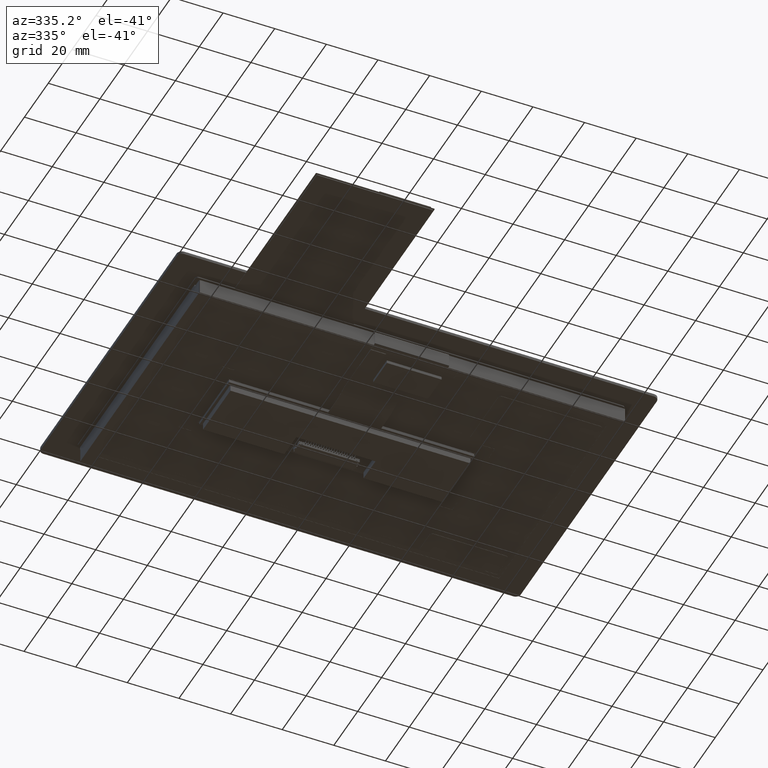
[diagram: clean part render]
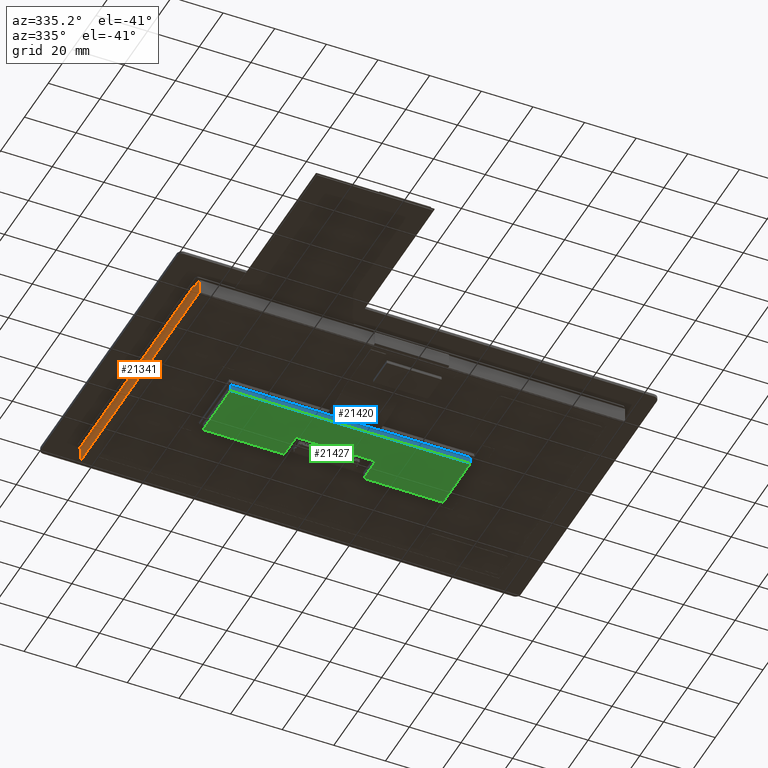
[diagram: same view with three faces highlighted in distinct colors, each labeled with its STEP entity id]
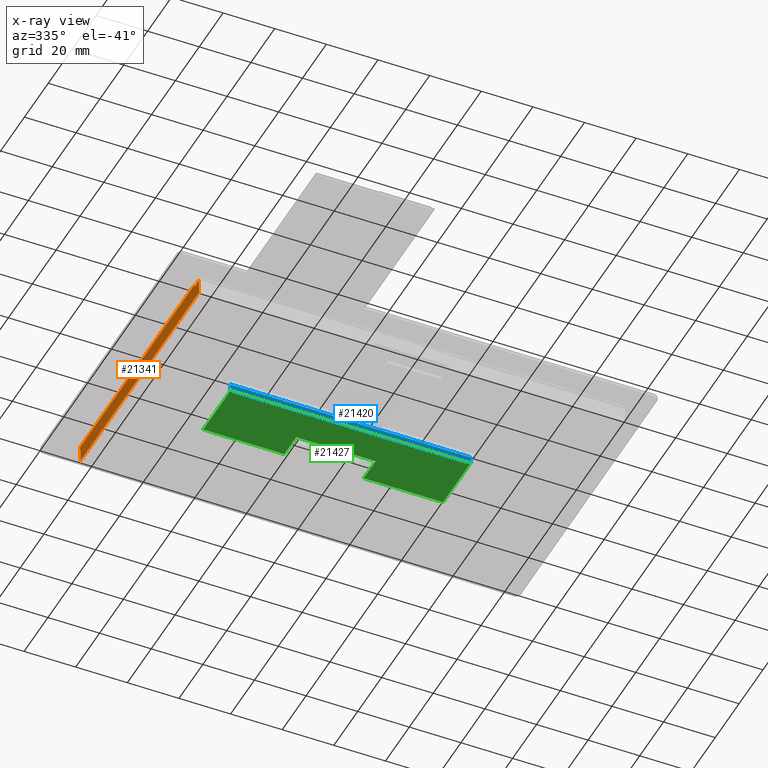
[diagram: x-ray of the same camera — body ghosted, the three highlighted faces saturated]
A machine part, auxiliary view with three faces highlighted in distinct colors.
The next image is the same camera in x-ray (body ghosted, the three faces saturated) — at least one of them is partly hidden behind the body in this view.
Their STEP definitions:

[orange] entity #21341 — the highlighted planar face has unit normal (-1, 0, 0).
#838=FACE_OUTER_BOUND('',#1981,.T.);
#1981=EDGE_LOOP('',(#14197,#14198,#14199,#14200,#14201,#14202,#14203,#14204));
#3258=LINE('',#30234,#6003);
#3269=LINE('',#30265,#6014);
#3278=LINE('',#30291,#6023);
#3281=LINE('',#30296,#6026);
#3282=LINE('',#30298,#6027);
#3283=LINE('',#30300,#6028);
#3284=LINE('',#30301,#6029);
#3285=LINE('',#30302,#6030);
#6003=VECTOR('',#24261,10.);
#6014=VECTOR('',#24282,1000.);
#6023=VECTOR('',#24303,10.);
#6026=VECTOR('',#24310,10.);
#6027=VECTOR('',#24311,1000.);
#6028=VECTOR('',#24312,10.);
#6029=VECTOR('',#24313,1000.);
#6030=VECTOR('',#24314,10.);
#8722=VERTEX_POINT('',#30232);
#8723=VERTEX_POINT('',#30233);
#8737=VERTEX_POINT('',#30262);
#8738=VERTEX_POINT('',#30264);
#8747=VERTEX_POINT('',#30287);
#8749=VERTEX_POINT('',#30290);
#8750=VERTEX_POINT('',#30297);
#8751=VERTEX_POINT('',#30299);
#10854=EDGE_CURVE('',#8722,#8723,#3258,.T.);
#10869=EDGE_CURVE('',#8737,#8738,#3269,.T.);
#10882=EDGE_CURVE('',#8747,#8749,#3278,.T.);
#10885=EDGE_CURVE('',#8722,#8749,#3281,.T.);
#10886=EDGE_CURVE('',#8750,#8747,#3282,.T.);
#10887=EDGE_CURVE('',#8751,#8750,#3283,.T.);
#10888=EDGE_CURVE('',#8751,#8738,#3284,.T.);
#10889=EDGE_CURVE('',#8723,#8737,#3285,.T.);
#14197=ORIENTED_EDGE('',*,*,#10854,.F.);
#14198=ORIENTED_EDGE('',*,*,#10885,.T.);
#14199=ORIENTED_EDGE('',*,*,#10882,.F.);
#14200=ORIENTED_EDGE('',*,*,#10886,.F.);
#14201=ORIENTED_EDGE('',*,*,#10887,.F.);
#14202=ORIENTED_EDGE('',*,*,#10888,.T.);
#14203=ORIENTED_EDGE('',*,*,#10869,.F.);
#14204=ORIENTED_EDGE('',*,*,#10889,.F.);
#20418=PLANE('',#22520);
#21341=ADVANCED_FACE('',(#838),#20418,.T.);
#22520=AXIS2_PLACEMENT_3D('',#30295,#24308,#24309);
#24261=DIRECTION('',(7.42461647718078E-16,-1.,0.));
#24282=DIRECTION('',(0.,-1.,0.));
#24303=DIRECTION('',(-7.42461647718078E-16,1.,1.76326454419395E-16));
#24308=DIRECTION('center_axis',(-1.,0.,0.));
#24309=DIRECTION('ref_axis',(0.,0.,1.));
#24310=DIRECTION('',(-7.38194966974665E-17,1.76326454419395E-16,-1.));
#24311=DIRECTION('',(0.,0.,1.));
#24312=DIRECTION('',(0.,1.,0.));
#24313=DIRECTION('',(0.,0.,1.));
#24314=DIRECTION('',(-4.93038065763136E-32,1.97215226305253E-31,-1.));
#30232=CARTESIAN_POINT('',(-80.985,47.64,-1.49999999999997));
#30233=CARTESIAN_POINT('',(-80.985,-48.3599999999999,-1.49999999999998));
#30234=CARTESIAN_POINT('',(-80.9849999999999,-3.86000000000005,-1.49999999999999));
#30262=CARTESIAN_POINT('',(-80.985,-48.3599999999999,-2.37));
#30264=CARTESIAN_POINT('',(-80.985,-52.03,-2.37));
#30265=CARTESIAN_POINT('',(-80.985,-52.03,-2.37));
#30287=CARTESIAN_POINT('',(-80.985,47.31,-2.69999999999997));
#30290=CARTESIAN_POINT('',(-80.985,47.64,-2.69999999999997));
#30291=CARTESIAN_POINT('',(-80.985,47.64,-2.69999999999997));
#30295=CARTESIAN_POINT('Origin',(-80.985,-52.03,-8.12500000000002));
#30296=CARTESIAN_POINT('',(-80.985,47.64,-1.49999999999997));
#30297=CARTESIAN_POINT('',(-80.985,47.31,-8.18000000000004));
#30298=CARTESIAN_POINT('',(-80.985,47.31,-8.12500000000002));
#30299=CARTESIAN_POINT('',(-80.985,-52.03,-8.18000000000004));
#30300=CARTESIAN_POINT('',(-80.985,-52.03,-8.18000000000004));
#30301=CARTESIAN_POINT('',(-80.985,-52.03,-8.12500000000002));
#30302=CARTESIAN_POINT('',(-80.985,-48.3599999999999,-1.49999999999998));

[blue] entity #21420 — the highlighted planar face has unit normal (0, 1, 0).
#917=FACE_OUTER_BOUND('',#2070,.T.);
#2070=EDGE_LOOP('',(#14611,#14612,#14613,#14614,#14615,#14616,#14617,#14618));
#3458=LINE('',#30710,#6203);
#3461=LINE('',#30717,#6206);
#3462=LINE('',#30719,#6207);
#3463=LINE('',#30721,#6208);
#3464=LINE('',#30722,#6209);
#3465=LINE('',#30724,#6210);
#3466=LINE('',#30726,#6211);
#3467=LINE('',#30727,#6212);
#6203=VECTOR('',#24695,1000.);
#6206=VECTOR('',#24700,10.);
#6207=VECTOR('',#24701,10.);
#6208=VECTOR('',#24702,1000.);
#6209=VECTOR('',#24703,1000.);
#6210=VECTOR('',#24704,10.);
#6211=VECTOR('',#24705,10.);
#6212=VECTOR('',#24706,10.);
#8880=VERTEX_POINT('',#30706);
#8882=VERTEX_POINT('',#30709);
#8884=VERTEX_POINT('',#30715);
#8885=VERTEX_POINT('',#30716);
#8886=VERTEX_POINT('',#30718);
#8887=VERTEX_POINT('',#30720);
#8888=VERTEX_POINT('',#30723);
#8889=VERTEX_POINT('',#30725);
#11088=EDGE_CURVE('',#8882,#8880,#3458,.T.);
#11091=EDGE_CURVE('',#8884,#8885,#3461,.T.);
#11092=EDGE_CURVE('',#8886,#8884,#3462,.T.);
#11093=EDGE_CURVE('',#8887,#8886,#3463,.T.);
#11094=EDGE_CURVE('',#8882,#8887,#3464,.T.);
#11095=EDGE_CURVE('',#8888,#8880,#3465,.T.);
#11096=EDGE_CURVE('',#8889,#8888,#3466,.T.);
#11097=EDGE_CURVE('',#8885,#8889,#3467,.T.);
#14611=ORIENTED_EDGE('',*,*,#11091,.F.);
#14612=ORIENTED_EDGE('',*,*,#11092,.F.);
#14613=ORIENTED_EDGE('',*,*,#11093,.F.);
#14614=ORIENTED_EDGE('',*,*,#11094,.F.);
#14615=ORIENTED_EDGE('',*,*,#11088,.T.);
#14616=ORIENTED_EDGE('',*,*,#11095,.F.);
#14617=ORIENTED_EDGE('',*,*,#11096,.F.);
#14618=ORIENTED_EDGE('',*,*,#11097,.F.);
#20482=PLANE('',#22625);
#21420=ADVANCED_FACE('',(#917),#20482,.F.);
#22625=AXIS2_PLACEMENT_3D('',#30714,#24698,#24699);
#24695=DIRECTION('',(0.,0.,1.));
#24698=DIRECTION('center_axis',(4.66323515047529E-18,1.,0.));
#24699=DIRECTION('ref_axis',(1.,-4.66323515047529E-18,0.));
#24700=DIRECTION('',(0.,0.,-1.));
#24701=DIRECTION('',(1.,-4.66323515047529E-18,0.));
#24702=DIRECTION('',(0.,0.,1.));
#24703=DIRECTION('',(-1.,4.66323515047529E-18,0.));
#24704=DIRECTION('',(1.,-4.66323515047529E-18,0.));
#24705=DIRECTION('',(0.,0.,1.));
#24706=DIRECTION('',(1.,-4.66323515047529E-18,0.));
#30706=CARTESIAN_POINT('',(42.125,-13.27,-9.38000000000005));
#30709=CARTESIAN_POINT('',(42.125,-13.27,-12.18));
#30710=CARTESIAN_POINT('',(42.125,-13.27,-12.18));
#30714=CARTESIAN_POINT('Origin',(-50.875,-13.27,-12.18));
#30715=CARTESIAN_POINT('',(-13.4831,-13.27,-9.38000000000005));
#30716=CARTESIAN_POINT('',(-13.4831,-13.27,-9.5000000000009));
#30717=CARTESIAN_POINT('',(-13.4831,-13.27,-7.65499999999953));
#30718=CARTESIAN_POINT('',(-50.875,-13.27,-9.38000000000005));
#30719=CARTESIAN_POINT('',(-51.375,-13.27,-9.38000000000005));
#30720=CARTESIAN_POINT('',(-50.875,-13.27,-12.18));
#30721=CARTESIAN_POINT('',(-50.875,-13.27,-12.18));
#30722=CARTESIAN_POINT('',(-50.875,-13.27,-12.18));
#30723=CARTESIAN_POINT('',(7.0386,-13.27,-9.38000000000005));
#30724=CARTESIAN_POINT('',(-51.375,-13.27,-9.38000000000005));
#30725=CARTESIAN_POINT('',(7.0386,-13.27,-9.5000000000009));
#30726=CARTESIAN_POINT('',(7.0386,-13.27,-3.03610000000011));
#30727=CARTESIAN_POINT('',(-32.17905,-13.27,-9.5000000000009));

[green] entity #21427 — the highlighted planar face has unit normal (0, 0, 1).
#924=FACE_OUTER_BOUND('',#2077,.T.);
#2077=EDGE_LOOP('',(#14643,#14644,#14645,#14646,#14647,#14648,#14649,#14650));
#3459=LINE('',#30712,#6204);
#3464=LINE('',#30722,#6209);
#3470=LINE('',#30733,#6215);
#3473=LINE('',#30739,#6218);
#3476=LINE('',#30745,#6221);
#3479=LINE('',#30751,#6224);
#3482=LINE('',#30757,#6227);
#3484=LINE('',#30760,#6229);
#6204=VECTOR('',#24696,1000.);
#6209=VECTOR('',#24703,1000.);
#6215=VECTOR('',#24711,1000.);
#6218=VECTOR('',#24716,1000.);
#6221=VECTOR('',#24721,1000.);
#6224=VECTOR('',#24726,1000.);
#6227=VECTOR('',#24731,1000.);
#6229=VECTOR('',#24735,1000.);
#8882=VERTEX_POINT('',#30709);
#8883=VERTEX_POINT('',#30711);
#8887=VERTEX_POINT('',#30720);
#8891=VERTEX_POINT('',#30731);
#8893=VERTEX_POINT('',#30737);
#8895=VERTEX_POINT('',#30743);
#8897=VERTEX_POINT('',#30749);
#8899=VERTEX_POINT('',#30755);
#11089=EDGE_CURVE('',#8883,#8882,#3459,.T.);
#11094=EDGE_CURVE('',#8882,#8887,#3464,.T.);
#11100=EDGE_CURVE('',#8887,#8891,#3470,.T.);
#11103=EDGE_CURVE('',#8891,#8893,#3473,.T.);
#11106=EDGE_CURVE('',#8893,#8895,#3476,.T.);
#11109=EDGE_CURVE('',#8895,#8897,#3479,.T.);
#11112=EDGE_CURVE('',#8897,#8899,#3482,.T.);
#11114=EDGE_CURVE('',#8899,#8883,#3484,.T.);
#14643=ORIENTED_EDGE('',*,*,#11089,.T.);
#14644=ORIENTED_EDGE('',*,*,#11094,.T.);
#14645=ORIENTED_EDGE('',*,*,#11100,.T.);
#14646=ORIENTED_EDGE('',*,*,#11103,.T.);
#14647=ORIENTED_EDGE('',*,*,#11106,.T.);
#14648=ORIENTED_EDGE('',*,*,#11109,.T.);
#14649=ORIENTED_EDGE('',*,*,#11112,.T.);
#14650=ORIENTED_EDGE('',*,*,#11114,.T.);
#20489=PLANE('',#22632);
#21427=ADVANCED_FACE('',(#924),#20489,.F.);
#22632=AXIS2_PLACEMENT_3D('',#30761,#24736,#24737);
#24696=DIRECTION('',(0.,-1.,0.));
#24703=DIRECTION('',(-1.,4.66323515047529E-18,0.));
#24711=DIRECTION('',(1.88556899562696E-17,1.,0.));
#24716=DIRECTION('',(1.,1.10176149633332E-16,0.));
#24721=DIRECTION('',(0.,-1.,0.));
#24726=DIRECTION('',(1.,0.,0.));
#24731=DIRECTION('',(0.,1.,0.));
#24735=DIRECTION('',(1.,-1.12607820576231E-16,0.));
#24736=DIRECTION('center_axis',(0.,0.,1.));
#24737=DIRECTION('ref_axis',(1.,0.,0.));
#30709=CARTESIAN_POINT('',(42.125,-13.27,-12.18));
#30711=CARTESIAN_POINT('',(42.125,9.73000000000003,-12.18));
#30712=CARTESIAN_POINT('',(42.125,-13.27,-12.18));
#30720=CARTESIAN_POINT('',(-50.875,-13.27,-12.18));
#30722=CARTESIAN_POINT('',(-50.875,-13.27,-12.18));
#30731=CARTESIAN_POINT('',(-50.875,9.73000000000003,-12.18));
#30733=CARTESIAN_POINT('',(-50.875,9.73000000000003,-12.18));
#30737=CARTESIAN_POINT('',(-19.3850000000002,9.73000000000003,-12.18));
#30739=CARTESIAN_POINT('',(-19.3850000000002,9.73000000000003,-12.18));
#30743=CARTESIAN_POINT('',(-19.3850000000002,-0.269999999999998,-12.18));
#30745=CARTESIAN_POINT('',(-19.3850000000002,9.73000000000003,-12.18));
#30749=CARTESIAN_POINT('',(11.3150000000005,-0.269999999999998,-12.18));
#30751=CARTESIAN_POINT('',(11.3150000000005,-0.269999999999998,-12.18));
#30755=CARTESIAN_POINT('',(11.3150000000005,9.73000000000003,-12.18));
#30757=CARTESIAN_POINT('',(11.3150000000005,9.73000000000003,-12.18));
#30760=CARTESIAN_POINT('',(42.125,9.73000000000003,-12.18));
#30761=CARTESIAN_POINT('Origin',(-51.875,-14.27,-12.18));